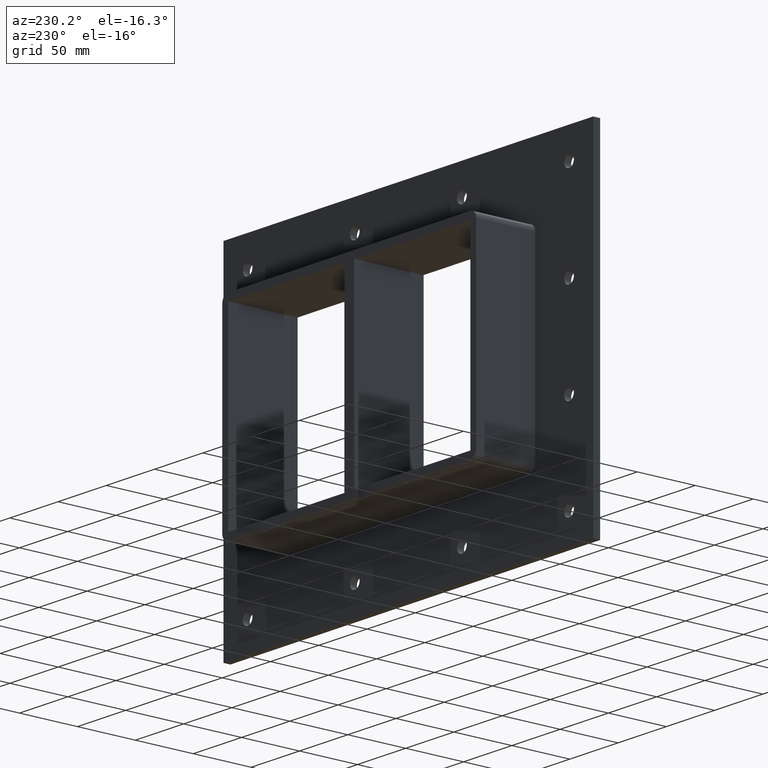
[diagram: clean part render]
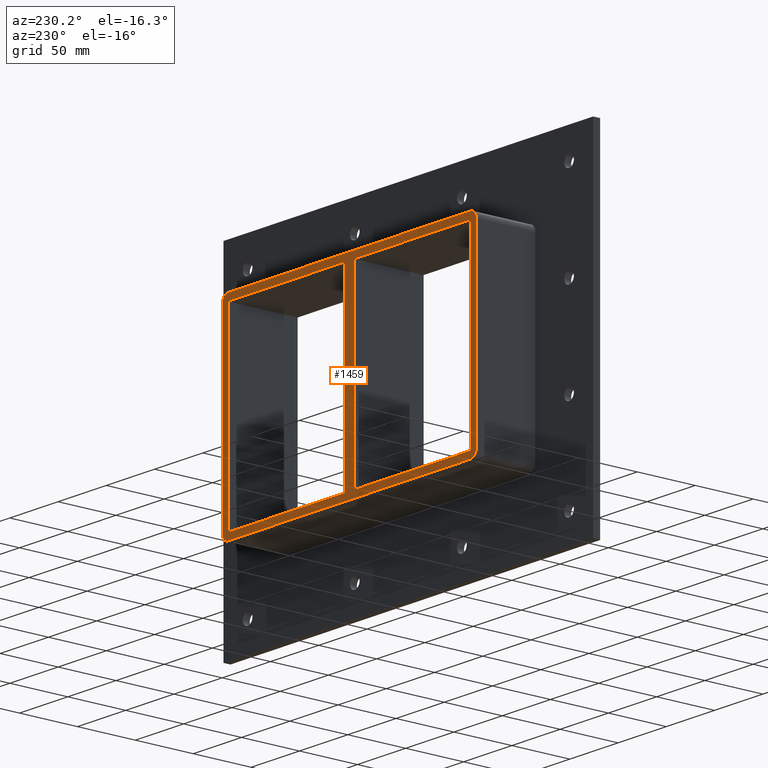
[diagram: same view with one face highlighted and labeled with its STEP entity id]
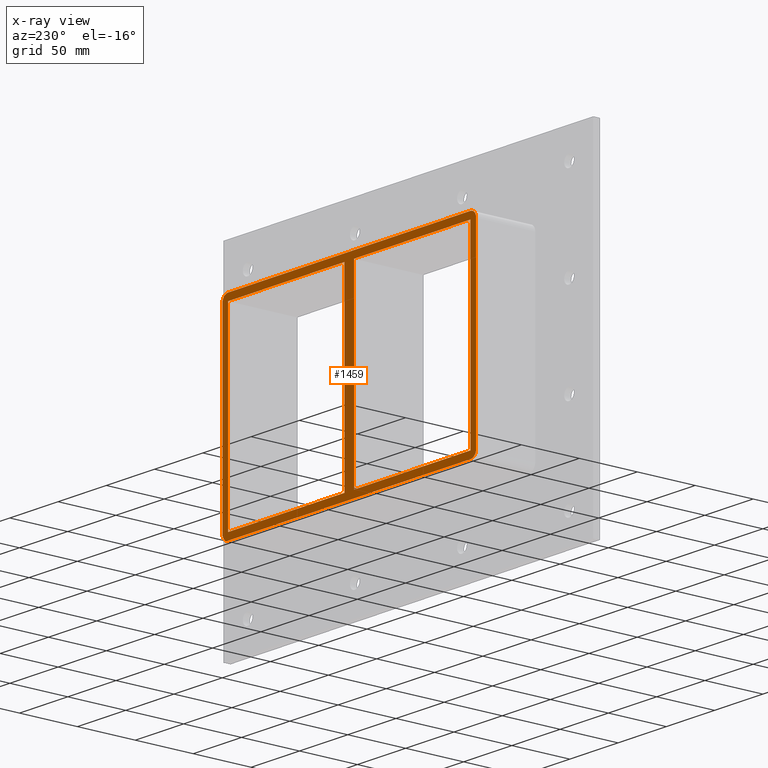
[diagram: x-ray of the same camera — body ghosted, the highlighted face saturated]
A machine part, auxiliary view. The second image highlights one B-rep face of the part: STEP entity #1459.
The next image is the same camera in x-ray: the body ghosted, the highlighted face saturated — about 0% of this face is hidden behind the body in this view.
In plain terms, the highlighted planar face has unit normal (0, 1, 0).
Its self-contained STEP definition (entity closure, byte-faithful):
#419=CARTESIAN_POINT('',(-5.000000000001315,57.0,79.750000000000014));
#420=VERTEX_POINT('',#419);
#427=CARTESIAN_POINT('',(-5.000000000001279,57.0,-79.750000000000014));
#428=VERTEX_POINT('',#427);
#429=CARTESIAN_POINT('',(-5.000000000001279,57.0,-79.750000000000014));
#430=DIRECTION('',(0.0,0.0,1.0));
#431=VECTOR('',#430,159.50000000000003);
#432=LINE('',#429,#431);
#433=EDGE_CURVE('',#428,#420,#432,.T.);
#459=CARTESIAN_POINT('',(5.0,57.0,-79.749999999981782));
#460=VERTEX_POINT('',#459);
#467=CARTESIAN_POINT('',(5.0,57.0,79.750000000000014));
#468=VERTEX_POINT('',#467);
#469=CARTESIAN_POINT('',(5.0,57.0,79.750000000000014));
#470=DIRECTION('',(0.0,0.0,-1.0));
#471=VECTOR('',#470,159.49999999998181);
#472=LINE('',#469,#471);
#473=EDGE_CURVE('',#468,#460,#472,.T.);
#490=CARTESIAN_POINT('',(-125.49999999999997,57.0,-79.750000000000014));
#491=VERTEX_POINT('',#490);
#492=CARTESIAN_POINT('',(-125.49999999999994,57.0,-79.750000000000014));
#493=DIRECTION('',(1.0,0.0,0.0));
#494=VECTOR('',#493,120.49999999999866);
#495=LINE('',#492,#494);
#496=EDGE_CURVE('',#491,#428,#495,.T.);
#529=CARTESIAN_POINT('',(125.49999999999997,57.0,-79.750000000000014));
#530=VERTEX_POINT('',#529);
#537=CARTESIAN_POINT('',(5.0,57.0,-79.750000000000014));
#538=DIRECTION('',(1.0,0.0,0.0));
#539=VECTOR('',#538,120.49999999999997);
#540=LINE('',#537,#539);
#541=EDGE_CURVE('',#460,#530,#540,.T.);
#552=CARTESIAN_POINT('',(125.49999999999997,57.0,79.750000000000014));
#553=VERTEX_POINT('',#552);
#554=CARTESIAN_POINT('',(125.49999999999996,57.0,79.750000000000014));
#555=DIRECTION('',(-1.0,0.0,0.0));
#556=VECTOR('',#555,120.49999999999996);
#557=LINE('',#554,#556);
#558=EDGE_CURVE('',#553,#468,#557,.T.);
#591=CARTESIAN_POINT('',(-125.49999999999997,57.0,79.750000000000014));
#592=VERTEX_POINT('',#591);
#599=CARTESIAN_POINT('',(-5.000000000001315,57.0,79.750000000000014));
#600=DIRECTION('',(-1.0,0.0,0.0));
#601=VECTOR('',#600,120.49999999999866);
#602=LINE('',#599,#601);
#603=EDGE_CURVE('',#420,#592,#602,.T.);
#974=CARTESIAN_POINT('',(-125.49999999999999,57.0,79.750000000000028));
#975=DIRECTION('',(0.0,0.0,-1.0));
#976=VECTOR('',#975,159.50000000000006);
#977=LINE('',#974,#976);
#978=EDGE_CURVE('',#592,#491,#977,.T.);
#1028=CARTESIAN_POINT('',(131.50000000000003,57.0,79.750000000000028));
#1029=VERTEX_POINT('',#1028);
#1036=CARTESIAN_POINT('',(125.50000000000004,57.0,85.750000000000028));
#1037=VERTEX_POINT('',#1036);
#1038=CARTESIAN_POINT('',(125.50000000000004,57.0,79.750000000000028));
#1039=DIRECTION('',(0.0,-1.0,0.0));
#1040=DIRECTION('',(0.707106781186548,0.0,0.707106781186548));
#1041=AXIS2_PLACEMENT_3D('',#1038,#1039,#1040);
#1042=CIRCLE('',#1041,6.000000000000002);
#1043=EDGE_CURVE('',#1029,#1037,#1042,.T.);
#1084=CARTESIAN_POINT('',(131.50000000000003,57.0,-79.750000000000014));
#1085=VERTEX_POINT('',#1084);
#1092=CARTESIAN_POINT('',(131.50000000000003,57.0,79.750000000000028));
#1093=DIRECTION('',(0.0,0.0,-1.0));
#1094=VECTOR('',#1093,159.50000000000006);
#1095=LINE('',#1092,#1094);
#1096=EDGE_CURVE('',#1029,#1085,#1095,.T.);
#1157=CARTESIAN_POINT('',(125.5,57.0,-85.750000000000028));
#1158=VERTEX_POINT('',#1157);
#1165=CARTESIAN_POINT('',(125.5,57.0,-79.750000000000028));
#1166=DIRECTION('',(0.0,-1.0,0.0));
#1167=DIRECTION('',(0.707106781186549,0.0,-0.707106781186546));
#1168=AXIS2_PLACEMENT_3D('',#1165,#1166,#1167);
#1169=CIRCLE('',#1168,6.000000000000001);
#1170=EDGE_CURVE('',#1158,#1085,#1169,.T.);
#1231=CARTESIAN_POINT('',(-125.5,57.0,-85.750000000000028));
#1232=VERTEX_POINT('',#1231);
#1239=CARTESIAN_POINT('',(125.50000000000001,57.0,-85.750000000000028));
#1240=DIRECTION('',(-1.0,0.0,0.0));
#1241=VECTOR('',#1240,251.0);
#1242=LINE('',#1239,#1241);
#1243=EDGE_CURVE('',#1158,#1232,#1242,.T.);
#1330=CARTESIAN_POINT('',(-131.5,57.0,-79.750000000000028));
#1331=VERTEX_POINT('',#1330);
#1338=CARTESIAN_POINT('',(-125.5,57.0,-79.750000000000028));
#1339=DIRECTION('',(0.0,-1.0,0.0));
#1340=DIRECTION('',(-0.707106781186547,0.0,-0.707106781186548));
#1341=AXIS2_PLACEMENT_3D('',#1338,#1339,#1340);
#1342=CIRCLE('',#1341,6.0);
#1343=EDGE_CURVE('',#1331,#1232,#1342,.T.);
#1355=CARTESIAN_POINT('',(-131.5,57.0,79.750000000000014));
#1356=VERTEX_POINT('',#1355);
#1363=CARTESIAN_POINT('',(-131.5,57.0,-79.750000000000028));
#1364=DIRECTION('',(0.0,0.0,1.0));
#1365=VECTOR('',#1364,159.50000000000006);
#1366=LINE('',#1363,#1365);
#1367=EDGE_CURVE('',#1331,#1356,#1366,.T.);
#1379=CARTESIAN_POINT('',(-125.49999999999997,57.0,85.750000000000028));
#1380=VERTEX_POINT('',#1379);
#1387=CARTESIAN_POINT('',(-125.49999999999997,57.0,79.750000000000028));
#1388=DIRECTION('',(0.0,-1.0,0.0));
#1389=DIRECTION('',(-0.707106781186549,0.0,0.707106781186546));
#1390=AXIS2_PLACEMENT_3D('',#1387,#1388,#1389);
#1391=CIRCLE('',#1390,6.000000000000001);
#1392=EDGE_CURVE('',#1380,#1356,#1391,.T.);
#1405=CARTESIAN_POINT('',(-125.49999999999999,57.0,85.750000000000028));
#1406=DIRECTION('',(1.0,0.0,0.0));
#1407=VECTOR('',#1406,251.0);
#1408=LINE('',#1405,#1407);
#1409=EDGE_CURVE('',#1380,#1037,#1408,.T.);
#1423=CARTESIAN_POINT('',(125.49999999999997,57.0,-79.750000000000028));
#1424=DIRECTION('',(0.0,0.0,1.0));
#1425=VECTOR('',#1424,159.50000000000006);
#1426=LINE('',#1423,#1425);
#1427=EDGE_CURVE('',#530,#553,#1426,.T.);
#1432=CARTESIAN_POINT('',(2.009389E-014,57.0,0.0));
#1433=DIRECTION('',(0.0,1.0,0.0));
#1434=DIRECTION('',(0.0,0.0,1.0));
#1435=AXIS2_PLACEMENT_3D('',#1432,#1433,#1434);
#1436=PLANE('',#1435);
#1437=ORIENTED_EDGE('',*,*,#1170,.F.);
#1438=ORIENTED_EDGE('',*,*,#1243,.T.);
#1439=ORIENTED_EDGE('',*,*,#1343,.F.);
#1440=ORIENTED_EDGE('',*,*,#1367,.T.);
#1441=ORIENTED_EDGE('',*,*,#1392,.F.);
#1442=ORIENTED_EDGE('',*,*,#1409,.T.);
#1443=ORIENTED_EDGE('',*,*,#1043,.F.);
#1444=ORIENTED_EDGE('',*,*,#1096,.T.);
#1445=EDGE_LOOP('',(#1437,#1438,#1439,#1440,#1441,#1442,#1443,#1444));
#1446=FACE_OUTER_BOUND('',#1445,.T.);
#1447=ORIENTED_EDGE('',*,*,#541,.T.);
#1448=ORIENTED_EDGE('',*,*,#1427,.T.);
#1449=ORIENTED_EDGE('',*,*,#558,.T.);
#1450=ORIENTED_EDGE('',*,*,#473,.T.);
#1451=EDGE_LOOP('',(#1447,#1448,#1449,#1450));
#1452=FACE_BOUND('',#1451,.T.);
#1453=ORIENTED_EDGE('',*,*,#433,.T.);
#1454=ORIENTED_EDGE('',*,*,#603,.T.);
#1455=ORIENTED_EDGE('',*,*,#978,.T.);
#1456=ORIENTED_EDGE('',*,*,#496,.T.);
#1457=EDGE_LOOP('',(#1453,#1454,#1455,#1456));
#1458=FACE_BOUND('',#1457,.T.);
#1459=ADVANCED_FACE('',(#1446,#1452,#1458),#1436,.T.);